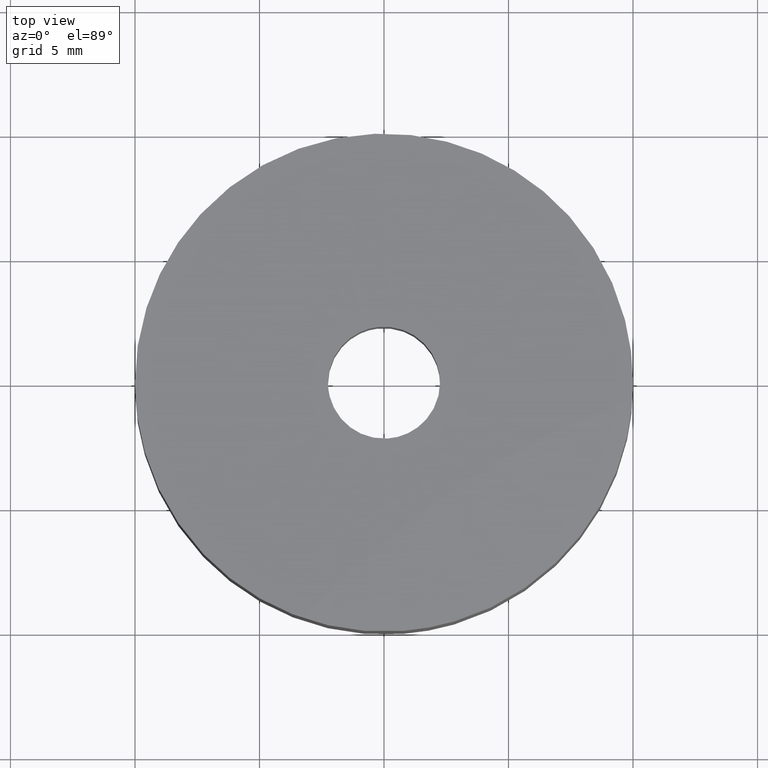
[diagram: clean part render]
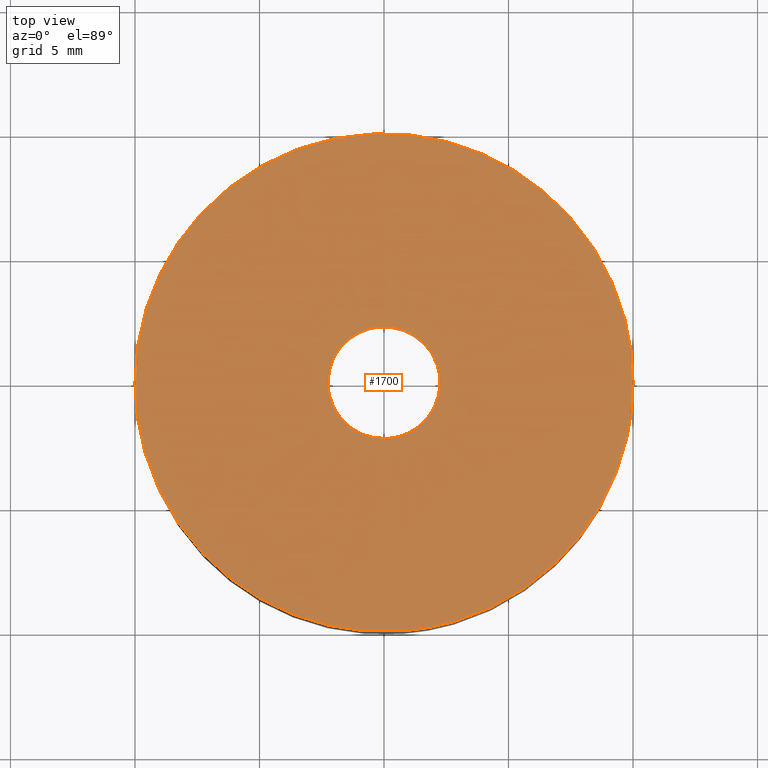
[diagram: same view with one face highlighted and labeled with its STEP entity id]
A machine part, top view. The second image highlights one B-rep face of the part: STEP entity #1700.
In plain terms, the highlighted face is a freeform B-spline surface patch.
Its self-contained STEP definition (entity closure, byte-faithful):
#549=CARTESIAN_POINT('',(0.137359213972935,-2.245803296448007,7.999999999999899));
#550=VERTEX_POINT('',#549);
#556=CARTESIAN_POINT('',(2.250000000000000,0.0,7.999999999999900));
#557=VERTEX_POINT('',#556);
#558=CARTESIAN_POINT('',(2.250000000000000,0.0,7.999999999999900));
#559=CARTESIAN_POINT('',(2.250000000000000,-2.116588650500986,7.999999999999899));
#560=CARTESIAN_POINT('',(0.137359213972935,-2.245803296448008,7.999999999999899));
#568=(BOUNDED_CURVE()B_SPLINE_CURVE(2,(#558,#559,#560),.UNSPECIFIED.,.F.,.U.)B_SPLINE_CURVE_WITH_KNOTS((3,3),(0.500000000000000,0.739332962238972),.UNSPECIFIED.)CURVE()GEOMETRIC_REPRESENTATION_ITEM()RATIONAL_B_SPLINE_CURVE((1.0,0.719603993286676,0.976072041666779))REPRESENTATION_ITEM(''));
#569=EDGE_CURVE('',#557,#550,#568,.T.);
#571=CARTESIAN_POINT('',(-0.265572947441810,2.234271919344237,7.999999999999899));
#572=VERTEX_POINT('',#571);
#573=CARTESIAN_POINT('',(-0.265572947441810,2.234271919344238,7.999999999999899));
#574=CARTESIAN_POINT('',(-0.133252207379956,2.250000000000000,7.999999999999901));
#575=CARTESIAN_POINT('',(0.0,2.250000000000000,7.999999999999900));
#576=CARTESIAN_POINT('',(2.250000000000000,2.250000000000000,7.999999999999900));
#577=CARTESIAN_POINT('',(2.250000000000000,0.0,7.999999999999900));
#585=(BOUNDED_CURVE()B_SPLINE_CURVE(2,(#573,#574,#575,#576,#577),.UNSPECIFIED.,.F.,.U.)B_SPLINE_CURVE_WITH_KNOTS((3,2,3),(0.229562782172814,0.250000000000000,0.500000000000000),.UNSPECIFIED.)CURVE()GEOMETRIC_REPRESENTATION_ITEM()RATIONAL_B_SPLINE_CURVE((0.956027359169463,0.976056309948015,1.0,0.707106781186547,1.0))REPRESENTATION_ITEM(''));
#586=EDGE_CURVE('',#572,#557,#585,.T.);
#634=CARTESIAN_POINT('',(-2.250000000000000,0.0,7.999999999999900));
#635=VERTEX_POINT('',#634);
#636=CARTESIAN_POINT('',(-2.250000000000000,0.0,7.999999999999900));
#637=CARTESIAN_POINT('',(-2.250000000000000,1.998396358827245,7.999999999999899));
#638=CARTESIAN_POINT('',(-0.265572947441810,2.234271919344238,7.999999999999899));
#646=(BOUNDED_CURVE()B_SPLINE_CURVE(2,(#636,#637,#638),.UNSPECIFIED.,.F.,.U.)B_SPLINE_CURVE_WITH_KNOTS((3,3),(0.0,0.229562782172814),.UNSPECIFIED.)CURVE()GEOMETRIC_REPRESENTATION_ITEM()RATIONAL_B_SPLINE_CURVE((1.0,0.731050471238532,0.956027359169463))REPRESENTATION_ITEM(''));
#647=EDGE_CURVE('',#635,#572,#646,.T.);
#649=CARTESIAN_POINT('',(0.137359213972935,-2.245803296448008,7.999999999999900));
#650=CARTESIAN_POINT('',(0.068743717441387,-2.250000000000000,7.999999999999901));
#651=CARTESIAN_POINT('',(0.0,-2.250000000000000,7.999999999999900));
#652=CARTESIAN_POINT('',(-2.250000000000000,-2.250000000000000,7.999999999999900));
#653=CARTESIAN_POINT('',(-2.250000000000000,0.0,7.999999999999900));
#661=(BOUNDED_CURVE()B_SPLINE_CURVE(2,(#649,#650,#651,#652,#653),.UNSPECIFIED.,.F.,.U.)B_SPLINE_CURVE_WITH_KNOTS((3,2,3),(0.739332962238971,0.750000000000000,1.0),.UNSPECIFIED.)CURVE()GEOMETRIC_REPRESENTATION_ITEM()RATIONAL_B_SPLINE_CURVE((0.976072041666778,0.987502787899870,1.0,0.707106781186547,1.0))REPRESENTATION_ITEM(''));
#662=EDGE_CURVE('',#550,#635,#661,.T.);
#1276=CARTESIAN_POINT('',(9.759689982042810,-2.179094182079235,7.999999999999899));
#1277=VERTEX_POINT('',#1276);
#1283=CARTESIAN_POINT('',(0.784585223780297,-9.969173788564049,7.999999999999900));
#1284=VERTEX_POINT('',#1283);
#1285=CARTESIAN_POINT('',(9.759689982042810,-2.179094182079235,7.999999999999898));
#1286=CARTESIAN_POINT('',(8.149781589379492,-9.389524525622949,7.999999999999900));
#1287=CARTESIAN_POINT('',(0.784585223780297,-9.969173788564049,7.999999999999900));
#1295=(BOUNDED_CURVE()B_SPLINE_CURVE(2,(#1285,#1286,#1287),.UNSPECIFIED.,.F.,.U.)B_SPLINE_CURVE_WITH_KNOTS((3,3),(0.537286561689504,0.736331399222893),.UNSPECIFIED.)CURVE()GEOMETRIC_REPRESENTATION_ITEM()RATIONAL_B_SPLINE_CURVE((0.925662738128303,0.762027682414940,0.969723561921979))REPRESENTATION_ITEM(''));
#1296=EDGE_CURVE('',#1277,#1284,#1295,.T.);
#1410=CARTESIAN_POINT('',(-10.0,0.0,7.999999999999900));
#1411=VERTEX_POINT('',#1410);
#1412=CARTESIAN_POINT('',(0.784585223780297,-9.969173788564049,7.999999999999900));
#1413=CARTESIAN_POINT('',(0.392898190024105,-10.000000000000002,7.999999999999900));
#1414=CARTESIAN_POINT('',(0.0,-10.0,7.999999999999900));
#1415=CARTESIAN_POINT('',(-10.000000000000002,-10.000000000000002,7.999999999999901));
#1416=CARTESIAN_POINT('',(-10.0,0.0,7.999999999999900));
#1424=(BOUNDED_CURVE()B_SPLINE_CURVE(2,(#1412,#1413,#1414,#1415,#1416),.UNSPECIFIED.,.F.,.U.)B_SPLINE_CURVE_WITH_KNOTS((3,2,3),(0.736331399222893,0.750000000000000,1.0),.UNSPECIFIED.)CURVE()GEOMETRIC_REPRESENTATION_ITEM()RATIONAL_B_SPLINE_CURVE((0.969723561921979,0.983986238086868,1.0,0.707106781186548,1.0))REPRESENTATION_ITEM(''));
#1425=EDGE_CURVE('',#1284,#1411,#1424,.T.);
#1427=CARTESIAN_POINT('',(10.0,0.0,7.999999999999900));
#1428=VERTEX_POINT('',#1427);
#1429=CARTESIAN_POINT('',(-10.0,0.0,7.999999999999900));
#1430=CARTESIAN_POINT('',(-10.000000000000002,10.000000000000002,7.999999999999901));
#1431=CARTESIAN_POINT('',(0.0,10.0,7.999999999999900));
#1432=CARTESIAN_POINT('',(10.000000000000002,10.000000000000002,7.999999999999901));
#1433=CARTESIAN_POINT('',(10.0,0.0,7.999999999999900));
#1441=(BOUNDED_CURVE()B_SPLINE_CURVE(2,(#1429,#1430,#1431,#1432,#1433),.UNSPECIFIED.,.F.,.U.)B_SPLINE_CURVE_WITH_KNOTS((3,2,3),(0.0,0.250000000000000,0.500000000000000),.UNSPECIFIED.)CURVE()GEOMETRIC_REPRESENTATION_ITEM()RATIONAL_B_SPLINE_CURVE((1.0,0.707106781186548,1.0,0.707106781186548,1.0))REPRESENTATION_ITEM(''));
#1442=EDGE_CURVE('',#1411,#1428,#1441,.T.);
#1444=CARTESIAN_POINT('',(10.0,0.0,7.999999999999900));
#1445=CARTESIAN_POINT('',(10.000000000000002,-1.102797758497112,7.999999999999900));
#1446=CARTESIAN_POINT('',(9.759689982042810,-2.179094182079235,7.999999999999898));
#1454=(BOUNDED_CURVE()B_SPLINE_CURVE(2,(#1444,#1445,#1446),.UNSPECIFIED.,.F.,.U.)B_SPLINE_CURVE_WITH_KNOTS((3,3),(0.500000000000000,0.537286561689504),.UNSPECIFIED.)CURVE()GEOMETRIC_REPRESENTATION_ITEM()RATIONAL_B_SPLINE_CURVE((1.0,0.956316075713099,0.925662738128303))REPRESENTATION_ITEM(''));
#1455=EDGE_CURVE('',#1428,#1277,#1454,.T.);
#1683=CARTESIAN_POINT('',(10.998999961236120,-10.996086148121950,7.999999999999900));
#1684=CARTESIAN_POINT('',(-10.999000497677921,-10.996086148121950,7.999999999999900));
#1685=CARTESIAN_POINT('',(10.998999961236120,10.998861876824501,7.999999999999900));
#1686=CARTESIAN_POINT('',(-10.999000497677921,10.998861876824501,7.999999999999900));
#1687=B_SPLINE_SURFACE_WITH_KNOTS('',1,1,((#1683,#1685),(#1684,#1686)),.UNSPECIFIED.,.F.,.F.,.U.,(2,2),(2,2),(0.0,21.998000458914039),(0.0,21.994948024946449),.UNSPECIFIED.);
#1688=ORIENTED_EDGE('',*,*,#1425,.F.);
#1689=ORIENTED_EDGE('',*,*,#1296,.F.);
#1690=ORIENTED_EDGE('',*,*,#1455,.F.);
#1691=ORIENTED_EDGE('',*,*,#1442,.F.);
#1692=EDGE_LOOP('',(#1688,#1689,#1690,#1691));
#1693=FACE_OUTER_BOUND('',#1692,.T.);
#1694=ORIENTED_EDGE('',*,*,#569,.T.);
#1695=ORIENTED_EDGE('',*,*,#662,.T.);
#1696=ORIENTED_EDGE('',*,*,#647,.T.);
#1697=ORIENTED_EDGE('',*,*,#586,.T.);
#1698=EDGE_LOOP('',(#1694,#1695,#1696,#1697));
#1699=FACE_BOUND('',#1698,.T.);
#1700=ADVANCED_FACE('',(#1693,#1699),#1687,.F.);